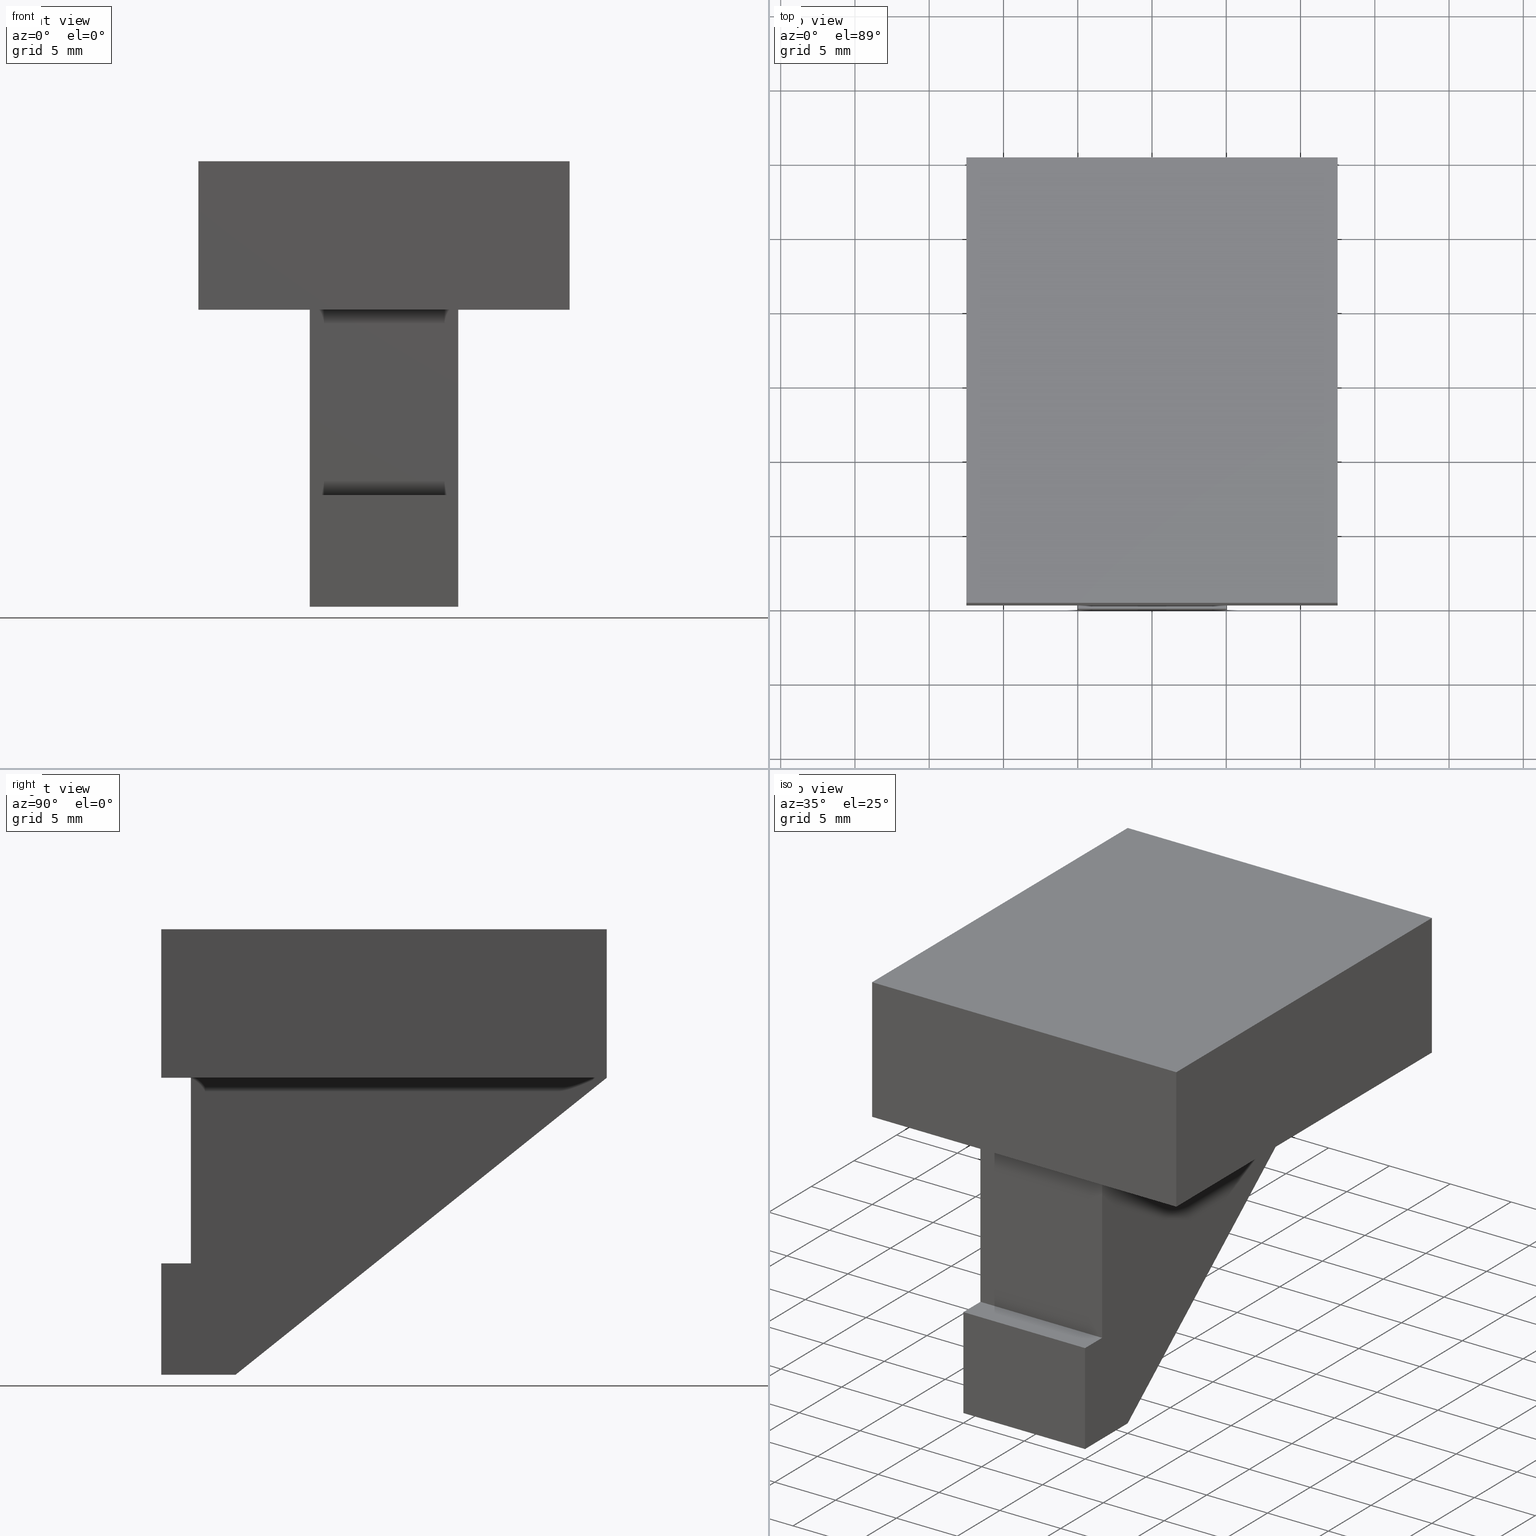
[diagram: canonical four-view strip — front | top / right | iso, engineering-drawing reading convention]
A machine part, canonical four-view strip (front | top / right | iso — engineering-drawing reading convention). The complete STEP part file that produces these views, byte-faithful:
ISO-10303-21;
HEADER;
/* Generated by software containing ST-Developer
 * from STEP Tools, Inc. (www.steptools.com) 
 */

FILE_DESCRIPTION(
/* description */ ('WKZ-449'),
/* implementation_level */ '2;1');

FILE_NAME(
/* name */ 'E_3_01_06_08_00_WKZ-0449.stp',
/* time_stamp */ '2025-11-25T09:42:36+01:00',
/* author */ ('d.fischer'),
/* organization */ (''),
/* preprocessor_version */ 'ST-DEVELOPER v20',
/* originating_system */ 'Autodesk Inventor 2025',
/* authorisation */ '');

FILE_SCHEMA (('AUTOMOTIVE_DESIGN { 1 0 10303 214 3 1 1 }'));
ENDSEC;

DATA;
#10=MECHANICAL_DESIGN_GEOMETRIC_PRESENTATION_REPRESENTATION('',(#13),#405);
#11=SHAPE_REPRESENTATION_RELATIONSHIP('SRR','None',#412,#12);
#12=ADVANCED_BREP_SHAPE_REPRESENTATION('',(#14),#404);
#13=STYLED_ITEM('',(#421),#14);
#14=MANIFOLD_SOLID_BREP('Volumenk\X\F6rper1',#242);
#15=FACE_OUTER_BOUND('',#28,.T.);
#16=FACE_OUTER_BOUND('',#29,.T.);
#17=FACE_OUTER_BOUND('',#30,.T.);
#18=FACE_OUTER_BOUND('',#31,.T.);
#19=FACE_OUTER_BOUND('',#32,.T.);
#20=FACE_OUTER_BOUND('',#33,.T.);
#21=FACE_OUTER_BOUND('',#34,.T.);
#22=FACE_OUTER_BOUND('',#35,.T.);
#23=FACE_OUTER_BOUND('',#36,.T.);
#24=FACE_OUTER_BOUND('',#37,.T.);
#25=FACE_OUTER_BOUND('',#38,.T.);
#26=FACE_OUTER_BOUND('',#39,.T.);
#27=FACE_OUTER_BOUND('',#40,.T.);
#28=EDGE_LOOP('',(#154,#155,#156,#157,#158,#159));
#29=EDGE_LOOP('',(#160,#161,#162,#163));
#30=EDGE_LOOP('',(#164,#165,#166,#167));
#31=EDGE_LOOP('',(#168,#169,#170,#171));
#32=EDGE_LOOP('',(#172,#173,#174,#175));
#33=EDGE_LOOP('',(#176,#177,#178,#179));
#34=EDGE_LOOP('',(#180,#181,#182,#183,#184,#185));
#35=EDGE_LOOP('',(#186,#187,#188,#189));
#36=EDGE_LOOP('',(#190,#191,#192,#193));
#37=EDGE_LOOP('',(#194,#195,#196,#197));
#38=EDGE_LOOP('',(#198,#199,#200,#201,#202,#203));
#39=EDGE_LOOP('',(#204,#205,#206,#207,#208,#209,#210,#211));
#40=EDGE_LOOP('',(#212,#213,#214,#215));
#41=LINE('',#341,#72);
#42=LINE('',#343,#73);
#43=LINE('',#345,#74);
#44=LINE('',#347,#75);
#45=LINE('',#349,#76);
#46=LINE('',#350,#77);
#47=LINE('',#353,#78);
#48=LINE('',#355,#79);
#49=LINE('',#356,#80);
#50=LINE('',#359,#81);
#51=LINE('',#360,#82);
#52=LINE('',#363,#83);
#53=LINE('',#365,#84);
#54=LINE('',#366,#85);
#55=LINE('',#369,#86);
#56=LINE('',#370,#87);
#57=LINE('',#372,#88);
#58=LINE('',#374,#89);
#59=LINE('',#378,#90);
#60=LINE('',#380,#91);
#61=LINE('',#382,#92);
#62=LINE('',#383,#93);
#63=LINE('',#386,#94);
#64=LINE('',#388,#95);
#65=LINE('',#389,#96);
#66=LINE('',#392,#97);
#67=LINE('',#393,#98);
#68=LINE('',#396,#99);
#69=LINE('',#397,#100);
#70=LINE('',#398,#101);
#71=LINE('',#400,#102);
#72=VECTOR('',#282,10.);
#73=VECTOR('',#283,10.);
#74=VECTOR('',#284,10.);
#75=VECTOR('',#285,10.);
#76=VECTOR('',#286,10.);
#77=VECTOR('',#287,10.);
#78=VECTOR('',#290,10.);
#79=VECTOR('',#291,10.);
#80=VECTOR('',#292,10.);
#81=VECTOR('',#295,10.);
#82=VECTOR('',#296,10.);
#83=VECTOR('',#299,10.);
#84=VECTOR('',#300,10.);
#85=VECTOR('',#301,10.);
#86=VECTOR('',#304,10.);
#87=VECTOR('',#305,10.);
#88=VECTOR('',#308,10.);
#89=VECTOR('',#311,10.);
#90=VECTOR('',#314,10.);
#91=VECTOR('',#315,10.);
#92=VECTOR('',#316,10.);
#93=VECTOR('',#317,10.);
#94=VECTOR('',#320,10.);
#95=VECTOR('',#321,10.);
#96=VECTOR('',#322,10.);
#97=VECTOR('',#325,10.);
#98=VECTOR('',#326,10.);
#99=VECTOR('',#329,10.);
#100=VECTOR('',#330,10.);
#101=VECTOR('',#331,10.);
#102=VECTOR('',#334,10.);
#103=VERTEX_POINT('',#339);
#104=VERTEX_POINT('',#340);
#105=VERTEX_POINT('',#342);
#106=VERTEX_POINT('',#344);
#107=VERTEX_POINT('',#346);
#108=VERTEX_POINT('',#348);
#109=VERTEX_POINT('',#352);
#110=VERTEX_POINT('',#354);
#111=VERTEX_POINT('',#358);
#112=VERTEX_POINT('',#362);
#113=VERTEX_POINT('',#364);
#114=VERTEX_POINT('',#368);
#115=VERTEX_POINT('',#376);
#116=VERTEX_POINT('',#377);
#117=VERTEX_POINT('',#379);
#118=VERTEX_POINT('',#381);
#119=VERTEX_POINT('',#385);
#120=VERTEX_POINT('',#387);
#121=VERTEX_POINT('',#391);
#122=VERTEX_POINT('',#395);
#123=EDGE_CURVE('',#103,#104,#41,.T.);
#124=EDGE_CURVE('',#104,#105,#42,.T.);
#125=EDGE_CURVE('',#105,#106,#43,.T.);
#126=EDGE_CURVE('',#107,#106,#44,.T.);
#127=EDGE_CURVE('',#107,#108,#45,.T.);
#128=EDGE_CURVE('',#108,#103,#46,.T.);
#129=EDGE_CURVE('',#109,#104,#47,.T.);
#130=EDGE_CURVE('',#110,#109,#48,.T.);
#131=EDGE_CURVE('',#105,#110,#49,.T.);
#132=EDGE_CURVE('',#111,#110,#50,.T.);
#133=EDGE_CURVE('',#106,#111,#51,.T.);
#134=EDGE_CURVE('',#107,#112,#52,.T.);
#135=EDGE_CURVE('',#113,#112,#53,.T.);
#136=EDGE_CURVE('',#108,#113,#54,.T.);
#137=EDGE_CURVE('',#114,#113,#55,.T.);
#138=EDGE_CURVE('',#103,#114,#56,.T.);
#139=EDGE_CURVE('',#109,#114,#57,.T.);
#140=EDGE_CURVE('',#111,#112,#58,.T.);
#141=EDGE_CURVE('',#115,#116,#59,.T.);
#142=EDGE_CURVE('',#116,#117,#60,.T.);
#143=EDGE_CURVE('',#117,#118,#61,.T.);
#144=EDGE_CURVE('',#118,#115,#62,.T.);
#145=EDGE_CURVE('',#119,#116,#63,.T.);
#146=EDGE_CURVE('',#120,#119,#64,.T.);
#147=EDGE_CURVE('',#117,#120,#65,.T.);
#148=EDGE_CURVE('',#121,#120,#66,.T.);
#149=EDGE_CURVE('',#118,#121,#67,.T.);
#150=EDGE_CURVE('',#122,#121,#68,.T.);
#151=EDGE_CURVE('',#112,#122,#69,.T.);
#152=EDGE_CURVE('',#115,#107,#70,.T.);
#153=EDGE_CURVE('',#119,#122,#71,.T.);
#154=ORIENTED_EDGE('',*,*,#123,.T.);
#155=ORIENTED_EDGE('',*,*,#124,.T.);
#156=ORIENTED_EDGE('',*,*,#125,.T.);
#157=ORIENTED_EDGE('',*,*,#126,.F.);
#158=ORIENTED_EDGE('',*,*,#127,.T.);
#159=ORIENTED_EDGE('',*,*,#128,.T.);
#160=ORIENTED_EDGE('',*,*,#129,.F.);
#161=ORIENTED_EDGE('',*,*,#130,.F.);
#162=ORIENTED_EDGE('',*,*,#131,.F.);
#163=ORIENTED_EDGE('',*,*,#124,.F.);
#164=ORIENTED_EDGE('',*,*,#131,.T.);
#165=ORIENTED_EDGE('',*,*,#132,.F.);
#166=ORIENTED_EDGE('',*,*,#133,.F.);
#167=ORIENTED_EDGE('',*,*,#125,.F.);
#168=ORIENTED_EDGE('',*,*,#134,.T.);
#169=ORIENTED_EDGE('',*,*,#135,.F.);
#170=ORIENTED_EDGE('',*,*,#136,.F.);
#171=ORIENTED_EDGE('',*,*,#127,.F.);
#172=ORIENTED_EDGE('',*,*,#136,.T.);
#173=ORIENTED_EDGE('',*,*,#137,.F.);
#174=ORIENTED_EDGE('',*,*,#138,.F.);
#175=ORIENTED_EDGE('',*,*,#128,.F.);
#176=ORIENTED_EDGE('',*,*,#138,.T.);
#177=ORIENTED_EDGE('',*,*,#139,.F.);
#178=ORIENTED_EDGE('',*,*,#129,.T.);
#179=ORIENTED_EDGE('',*,*,#123,.F.);
#180=ORIENTED_EDGE('',*,*,#139,.T.);
#181=ORIENTED_EDGE('',*,*,#137,.T.);
#182=ORIENTED_EDGE('',*,*,#135,.T.);
#183=ORIENTED_EDGE('',*,*,#140,.F.);
#184=ORIENTED_EDGE('',*,*,#132,.T.);
#185=ORIENTED_EDGE('',*,*,#130,.T.);
#186=ORIENTED_EDGE('',*,*,#141,.T.);
#187=ORIENTED_EDGE('',*,*,#142,.T.);
#188=ORIENTED_EDGE('',*,*,#143,.T.);
#189=ORIENTED_EDGE('',*,*,#144,.T.);
#190=ORIENTED_EDGE('',*,*,#145,.F.);
#191=ORIENTED_EDGE('',*,*,#146,.F.);
#192=ORIENTED_EDGE('',*,*,#147,.F.);
#193=ORIENTED_EDGE('',*,*,#142,.F.);
#194=ORIENTED_EDGE('',*,*,#147,.T.);
#195=ORIENTED_EDGE('',*,*,#148,.F.);
#196=ORIENTED_EDGE('',*,*,#149,.F.);
#197=ORIENTED_EDGE('',*,*,#143,.F.);
#198=ORIENTED_EDGE('',*,*,#149,.T.);
#199=ORIENTED_EDGE('',*,*,#150,.F.);
#200=ORIENTED_EDGE('',*,*,#151,.F.);
#201=ORIENTED_EDGE('',*,*,#134,.F.);
#202=ORIENTED_EDGE('',*,*,#152,.F.);
#203=ORIENTED_EDGE('',*,*,#144,.F.);
#204=ORIENTED_EDGE('',*,*,#140,.T.);
#205=ORIENTED_EDGE('',*,*,#151,.T.);
#206=ORIENTED_EDGE('',*,*,#153,.F.);
#207=ORIENTED_EDGE('',*,*,#145,.T.);
#208=ORIENTED_EDGE('',*,*,#141,.F.);
#209=ORIENTED_EDGE('',*,*,#152,.T.);
#210=ORIENTED_EDGE('',*,*,#126,.T.);
#211=ORIENTED_EDGE('',*,*,#133,.T.);
#212=ORIENTED_EDGE('',*,*,#153,.T.);
#213=ORIENTED_EDGE('',*,*,#150,.T.);
#214=ORIENTED_EDGE('',*,*,#148,.T.);
#215=ORIENTED_EDGE('',*,*,#146,.T.);
#216=PLANE('',#265);
#217=PLANE('',#266);
#218=PLANE('',#267);
#219=PLANE('',#268);
#220=PLANE('',#269);
#221=PLANE('',#270);
#222=PLANE('',#271);
#223=PLANE('',#272);
#224=PLANE('',#273);
#225=PLANE('',#274);
#226=PLANE('',#275);
#227=PLANE('',#276);
#228=PLANE('',#277);
#229=ADVANCED_FACE('',(#15),#216,.T.);
#230=ADVANCED_FACE('',(#16),#217,.T.);
#231=ADVANCED_FACE('',(#17),#218,.T.);
#232=ADVANCED_FACE('',(#18),#219,.T.);
#233=ADVANCED_FACE('',(#19),#220,.T.);
#234=ADVANCED_FACE('',(#20),#221,.T.);
#235=ADVANCED_FACE('',(#21),#222,.T.);
#236=ADVANCED_FACE('',(#22),#223,.T.);
#237=ADVANCED_FACE('',(#23),#224,.T.);
#238=ADVANCED_FACE('',(#24),#225,.T.);
#239=ADVANCED_FACE('',(#25),#226,.T.);
#240=ADVANCED_FACE('',(#26),#227,.T.);
#241=ADVANCED_FACE('',(#27),#228,.T.);
#242=CLOSED_SHELL('',(#229,#230,#231,#232,#233,#234,#235,#236,#237,#238,
#239,#240,#241));
#243=DERIVED_UNIT_ELEMENT(#246,1.);
#244=DERIVED_UNIT_ELEMENT(#407,-3.);
#245=DIMENSIONAL_EXPONENTS(0.,1.,0.,0.,0.,0.,0.);
#246=(
CONVERSION_BASED_UNIT('gram',#248)
MASS_UNIT()
NAMED_UNIT(#245)
);
#247=(
MASS_UNIT()
NAMED_UNIT(*)
SI_UNIT(.KILO.,.GRAM.)
);
#248=MASS_MEASURE_WITH_UNIT(MASS_MEASURE(0.001),#247);
#249=DERIVED_UNIT((#243,#244));
#250=MEASURE_REPRESENTATION_ITEM('density measure',
POSITIVE_RATIO_MEASURE(1.),#249);
#251=PROPERTY_DEFINITION_REPRESENTATION(#256,#253);
#252=PROPERTY_DEFINITION_REPRESENTATION(#257,#254);
#253=REPRESENTATION('material name',(#255),#404);
#254=REPRESENTATION('density',(#250),#404);
#255=DESCRIPTIVE_REPRESENTATION_ITEM('Generisch','Generisch');
#256=PROPERTY_DEFINITION('material property','material name',#414);
#257=PROPERTY_DEFINITION('material property','density of part',#414);
#258=DATE_TIME_ROLE('creation_date');
#259=APPLIED_DATE_AND_TIME_ASSIGNMENT(#260,#258,(#414));
#260=DATE_AND_TIME(#261,#262);
#261=CALENDAR_DATE(2023,30,6);
#262=LOCAL_TIME(0,0,0.,#263);
#263=COORDINATED_UNIVERSAL_TIME_OFFSET(0,0,.BEHIND.);
#264=AXIS2_PLACEMENT_3D('',#337,#278,#279);
#265=AXIS2_PLACEMENT_3D('',#338,#280,#281);
#266=AXIS2_PLACEMENT_3D('',#351,#288,#289);
#267=AXIS2_PLACEMENT_3D('',#357,#293,#294);
#268=AXIS2_PLACEMENT_3D('',#361,#297,#298);
#269=AXIS2_PLACEMENT_3D('',#367,#302,#303);
#270=AXIS2_PLACEMENT_3D('',#371,#306,#307);
#271=AXIS2_PLACEMENT_3D('',#373,#309,#310);
#272=AXIS2_PLACEMENT_3D('',#375,#312,#313);
#273=AXIS2_PLACEMENT_3D('',#384,#318,#319);
#274=AXIS2_PLACEMENT_3D('',#390,#323,#324);
#275=AXIS2_PLACEMENT_3D('',#394,#327,#328);
#276=AXIS2_PLACEMENT_3D('',#399,#332,#333);
#277=AXIS2_PLACEMENT_3D('',#401,#335,#336);
#278=DIRECTION('axis',(0.,0.,1.));
#279=DIRECTION('refdir',(1.,0.,0.));
#280=DIRECTION('center_axis',(-1.,0.,0.));
#281=DIRECTION('ref_axis',(0.,0.,1.));
#282=DIRECTION('',(0.,0.,1.));
#283=DIRECTION('',(0.,1.,0.));
#284=DIRECTION('',(0.,1.33226762955019E-16,1.));
#285=DIRECTION('',(0.,-1.,0.));
#286=DIRECTION('',(0.,-0.78086880944303,-0.624695047554424));
#287=DIRECTION('',(0.,-1.,0.));
#288=DIRECTION('center_axis',(0.,0.,1.));
#289=DIRECTION('ref_axis',(0.,-1.,0.));
#290=DIRECTION('',(-1.,0.,0.));
#291=DIRECTION('',(0.,-1.,0.));
#292=DIRECTION('',(1.,0.,0.));
#293=DIRECTION('center_axis',(0.,-1.,1.33226762955019E-16));
#294=DIRECTION('ref_axis',(0.,-1.33226762955019E-16,-1.));
#295=DIRECTION('',(0.,-1.33226762955019E-16,-1.));
#296=DIRECTION('',(1.,0.,0.));
#297=DIRECTION('center_axis',(0.,0.624695047554424,-0.78086880944303));
#298=DIRECTION('ref_axis',(0.,0.78086880944303,0.624695047554424));
#299=DIRECTION('',(1.,0.,0.));
#300=DIRECTION('',(0.,0.78086880944303,0.624695047554424));
#301=DIRECTION('',(1.,0.,0.));
#302=DIRECTION('center_axis',(0.,0.,-1.));
#303=DIRECTION('ref_axis',(0.,1.,0.));
#304=DIRECTION('',(0.,1.,0.));
#305=DIRECTION('',(1.,0.,0.));
#306=DIRECTION('center_axis',(0.,-1.,0.));
#307=DIRECTION('ref_axis',(0.,0.,-1.));
#308=DIRECTION('',(0.,0.,-1.));
#309=DIRECTION('center_axis',(1.,0.,0.));
#310=DIRECTION('ref_axis',(0.,0.,-1.));
#311=DIRECTION('',(0.,1.,0.));
#312=DIRECTION('center_axis',(-1.,0.,0.));
#313=DIRECTION('ref_axis',(0.,0.,1.));
#314=DIRECTION('',(0.,-1.,0.));
#315=DIRECTION('',(0.,-1.80411241501588E-16,1.));
#316=DIRECTION('',(0.,1.,0.));
#317=DIRECTION('',(0.,0.,-1.));
#318=DIRECTION('center_axis',(0.,-1.,-1.80411241501588E-16));
#319=DIRECTION('ref_axis',(0.,1.80411241501588E-16,-1.));
#320=DIRECTION('',(-1.,0.,0.));
#321=DIRECTION('',(0.,1.80411241501588E-16,-1.));
#322=DIRECTION('',(1.,0.,0.));
#323=DIRECTION('center_axis',(0.,0.,1.));
#324=DIRECTION('ref_axis',(0.,-1.,0.));
#325=DIRECTION('',(0.,-1.,0.));
#326=DIRECTION('',(1.,0.,0.));
#327=DIRECTION('center_axis',(0.,1.,0.));
#328=DIRECTION('ref_axis',(0.,0.,1.));
#329=DIRECTION('',(0.,0.,1.));
#330=DIRECTION('',(1.,0.,0.));
#331=DIRECTION('',(1.,0.,0.));
#332=DIRECTION('center_axis',(0.,0.,-1.));
#333=DIRECTION('ref_axis',(0.,1.,0.));
#334=DIRECTION('',(0.,1.,0.));
#335=DIRECTION('center_axis',(1.,0.,0.));
#336=DIRECTION('ref_axis',(0.,0.,-1.));
#337=CARTESIAN_POINT('',(0.,0.,0.));
#338=CARTESIAN_POINT('Origin',(-5.,15.,-10.));
#339=CARTESIAN_POINT('',(-5.,0.,-20.));
#340=CARTESIAN_POINT('',(-5.,0.,-12.5));
#341=CARTESIAN_POINT('',(-5.,0.,-12.5));
#342=CARTESIAN_POINT('',(-5.,2.,-12.5));
#343=CARTESIAN_POINT('',(-5.,2.,-12.5));
#344=CARTESIAN_POINT('',(-5.,2.,0.));
#345=CARTESIAN_POINT('',(-5.,2.,0.));
#346=CARTESIAN_POINT('',(-5.,30.,0.));
#347=CARTESIAN_POINT('',(-5.,7.5,0.));
#348=CARTESIAN_POINT('',(-5.,5.,-20.));
#349=CARTESIAN_POINT('',(-5.,5.,-20.));
#350=CARTESIAN_POINT('',(-5.,0.,-20.));
#351=CARTESIAN_POINT('Origin',(0.,2.,-12.5));
#352=CARTESIAN_POINT('',(5.,0.,-12.5));
#353=CARTESIAN_POINT('',(0.,0.,-12.5));
#354=CARTESIAN_POINT('',(5.,2.,-12.5));
#355=CARTESIAN_POINT('',(5.,2.,-12.5));
#356=CARTESIAN_POINT('',(0.,2.,-12.5));
#357=CARTESIAN_POINT('Origin',(0.,2.,0.));
#358=CARTESIAN_POINT('',(5.,2.,0.));
#359=CARTESIAN_POINT('',(5.,2.,0.));
#360=CARTESIAN_POINT('',(0.,2.,0.));
#361=CARTESIAN_POINT('Origin',(0.,5.,-20.));
#362=CARTESIAN_POINT('',(5.,30.,0.));
#363=CARTESIAN_POINT('',(0.,30.,0.));
#364=CARTESIAN_POINT('',(5.,5.,-20.));
#365=CARTESIAN_POINT('',(5.,5.,-20.));
#366=CARTESIAN_POINT('',(0.,5.,-20.));
#367=CARTESIAN_POINT('Origin',(0.,0.,-20.));
#368=CARTESIAN_POINT('',(5.,0.,-20.));
#369=CARTESIAN_POINT('',(5.,0.,-20.));
#370=CARTESIAN_POINT('',(0.,0.,-20.));
#371=CARTESIAN_POINT('Origin',(0.,0.,-12.5));
#372=CARTESIAN_POINT('',(5.,0.,-12.5));
#373=CARTESIAN_POINT('Origin',(5.,15.,-10.));
#374=CARTESIAN_POINT('',(5.,7.5,0.));
#375=CARTESIAN_POINT('Origin',(-12.5,15.,5.));
#376=CARTESIAN_POINT('',(-12.5,30.,0.));
#377=CARTESIAN_POINT('',(-12.5,0.,0.));
#378=CARTESIAN_POINT('',(-12.5,0.,0.));
#379=CARTESIAN_POINT('',(-12.5,0.,10.));
#380=CARTESIAN_POINT('',(-12.5,-5.48172618408671E-15,10.));
#381=CARTESIAN_POINT('',(-12.5,30.,10.));
#382=CARTESIAN_POINT('',(-12.5,30.,10.));
#383=CARTESIAN_POINT('',(-12.5,30.,0.));
#384=CARTESIAN_POINT('Origin',(0.,-5.48172618408671E-15,10.));
#385=CARTESIAN_POINT('',(12.5,0.,0.));
#386=CARTESIAN_POINT('',(0.,0.,0.));
#387=CARTESIAN_POINT('',(12.5,0.,10.));
#388=CARTESIAN_POINT('',(12.5,-5.48172618408671E-15,10.));
#389=CARTESIAN_POINT('',(0.,0.,10.));
#390=CARTESIAN_POINT('Origin',(0.,30.,10.));
#391=CARTESIAN_POINT('',(12.5,30.,10.));
#392=CARTESIAN_POINT('',(12.5,30.,10.));
#393=CARTESIAN_POINT('',(0.,30.,10.));
#394=CARTESIAN_POINT('Origin',(0.,30.,0.));
#395=CARTESIAN_POINT('',(12.5,30.,0.));
#396=CARTESIAN_POINT('',(12.5,30.,0.));
#397=CARTESIAN_POINT('',(0.,30.,0.));
#398=CARTESIAN_POINT('',(0.,30.,0.));
#399=CARTESIAN_POINT('Origin',(0.,0.,0.));
#400=CARTESIAN_POINT('',(12.5,0.,0.));
#401=CARTESIAN_POINT('Origin',(12.5,15.,5.));
#402=UNCERTAINTY_MEASURE_WITH_UNIT(LENGTH_MEASURE(0.01),#406,
'DISTANCE_ACCURACY_VALUE',
'Maximum model space distance between geometric entities at asserted c
onnectivities');
#403=UNCERTAINTY_MEASURE_WITH_UNIT(LENGTH_MEASURE(0.01),#406,
'DISTANCE_ACCURACY_VALUE',
'Maximum model space distance between geometric entities at asserted c
onnectivities');
#404=(
GEOMETRIC_REPRESENTATION_CONTEXT(3)
GLOBAL_UNCERTAINTY_ASSIGNED_CONTEXT((#402))
GLOBAL_UNIT_ASSIGNED_CONTEXT((#406,#408,#409))
REPRESENTATION_CONTEXT('','3D')
);
#405=(
GEOMETRIC_REPRESENTATION_CONTEXT(3)
GLOBAL_UNCERTAINTY_ASSIGNED_CONTEXT((#403))
GLOBAL_UNIT_ASSIGNED_CONTEXT((#406,#408,#409))
REPRESENTATION_CONTEXT('','3D')
);
#406=(
LENGTH_UNIT()
NAMED_UNIT(*)
SI_UNIT(.MILLI.,.METRE.)
);
#407=(
LENGTH_UNIT()
NAMED_UNIT(*)
SI_UNIT(.CENTI.,.METRE.)
);
#408=(
NAMED_UNIT(*)
PLANE_ANGLE_UNIT()
SI_UNIT($,.RADIAN.)
);
#409=(
NAMED_UNIT(*)
SI_UNIT($,.STERADIAN.)
SOLID_ANGLE_UNIT()
);
#410=SHAPE_DEFINITION_REPRESENTATION(#411,#412);
#411=PRODUCT_DEFINITION_SHAPE('',$,#414);
#412=SHAPE_REPRESENTATION('',(#264),#404);
#413=PRODUCT_DEFINITION_CONTEXT('part definition',#418,'design');
#414=PRODUCT_DEFINITION('E_3_01_06_08_00_WKZ-0449',
'E_3_01_06_08_00_WKZ-0449',#415,#413);
#415=PRODUCT_DEFINITION_FORMATION('',$,#420);
#416=PRODUCT_RELATED_PRODUCT_CATEGORY('E_3_01_06_08_00_WKZ-0449',
'E_3_01_06_08_00_WKZ-0449',(#420));
#417=APPLICATION_PROTOCOL_DEFINITION('international standard',
'automotive_design',2009,#418);
#418=APPLICATION_CONTEXT(
'Core Data for Automotive Mechanical Design Process');
#419=PRODUCT_CONTEXT('part definition',#418,'mechanical');
#420=PRODUCT('E_3_01_06_08_00_WKZ-0449','E_3_01_06_08_00_WKZ-0449',
'WKZ-449',(#419));
#421=PRESENTATION_STYLE_ASSIGNMENT((#422));
#422=SURFACE_STYLE_USAGE(.BOTH.,#425);
#423=SURFACE_STYLE_RENDERING_WITH_PROPERTIES($,#429,(#424));
#424=SURFACE_STYLE_TRANSPARENT(0.);
#425=SURFACE_SIDE_STYLE('',(#426,#423));
#426=SURFACE_STYLE_FILL_AREA(#427);
#427=FILL_AREA_STYLE('',(#428));
#428=FILL_AREA_STYLE_COLOUR('',#429);
#429=COLOUR_RGB('',0.749019607843137,0.749019607843137,0.749019607843137);
ENDSEC;
END-ISO-10303-21;
